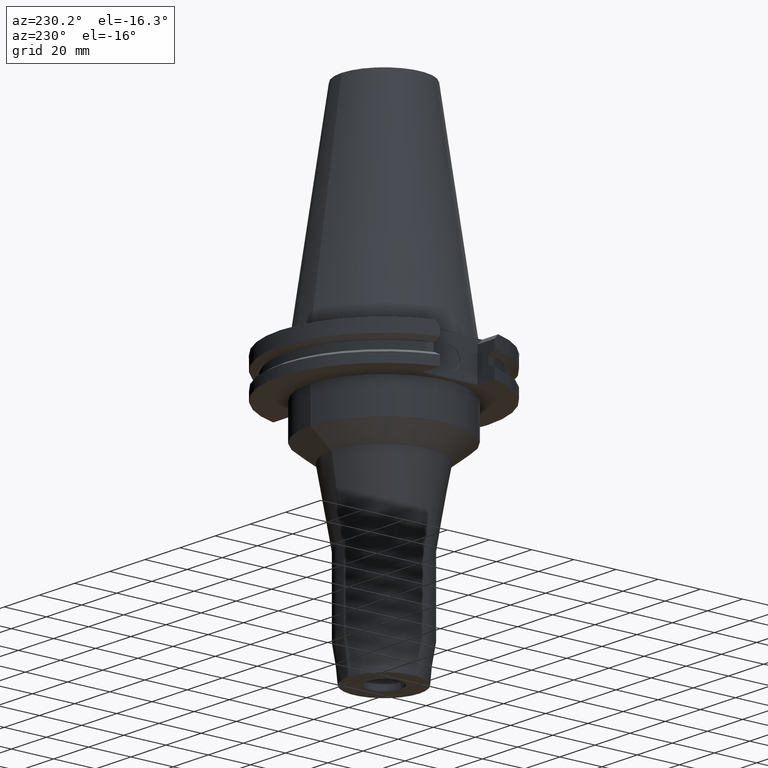
[diagram: clean part render]
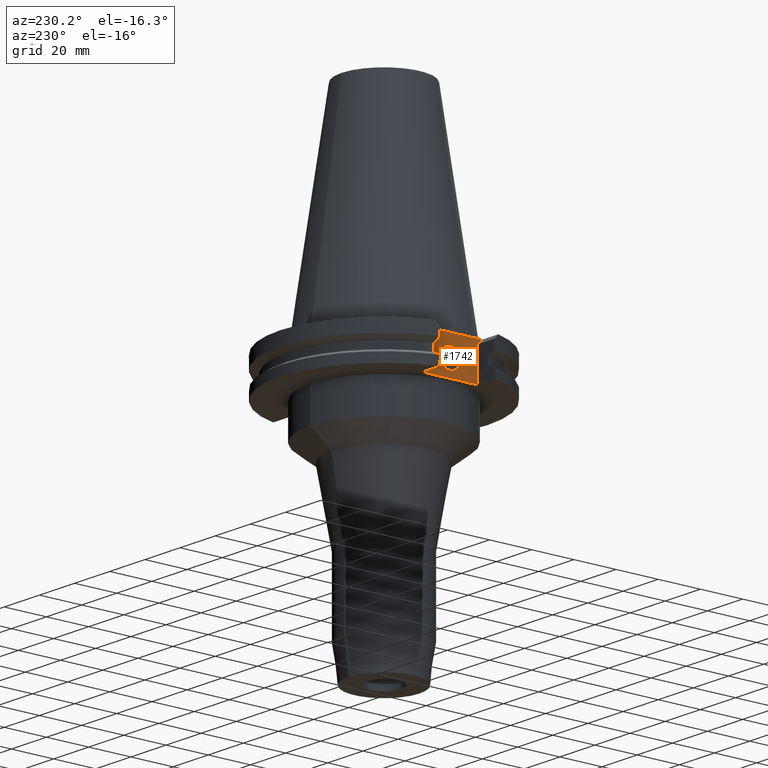
[diagram: same view with one face highlighted and labeled with its STEP entity id]
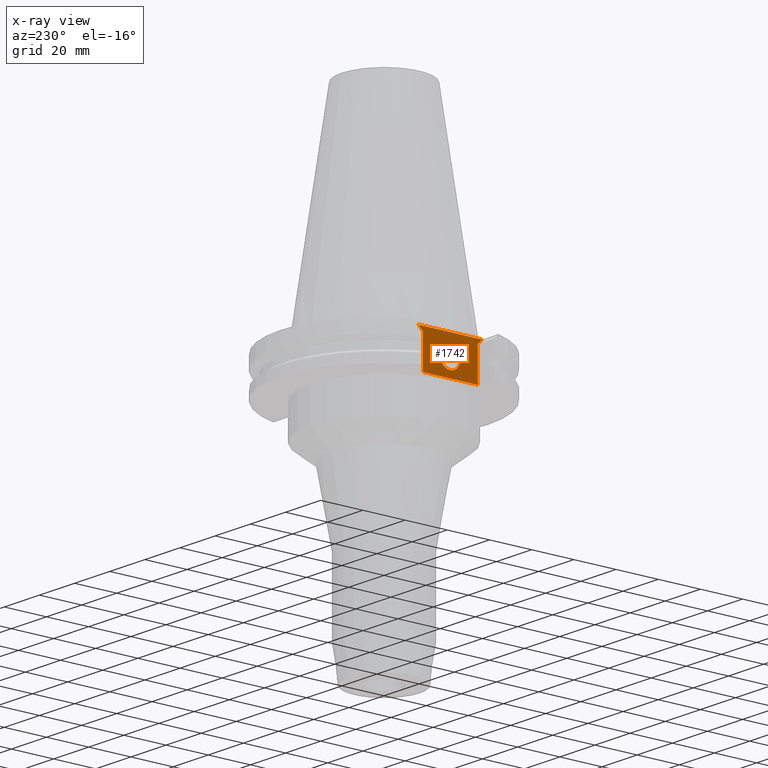
[diagram: x-ray of the same camera — body ghosted, the highlighted face saturated]
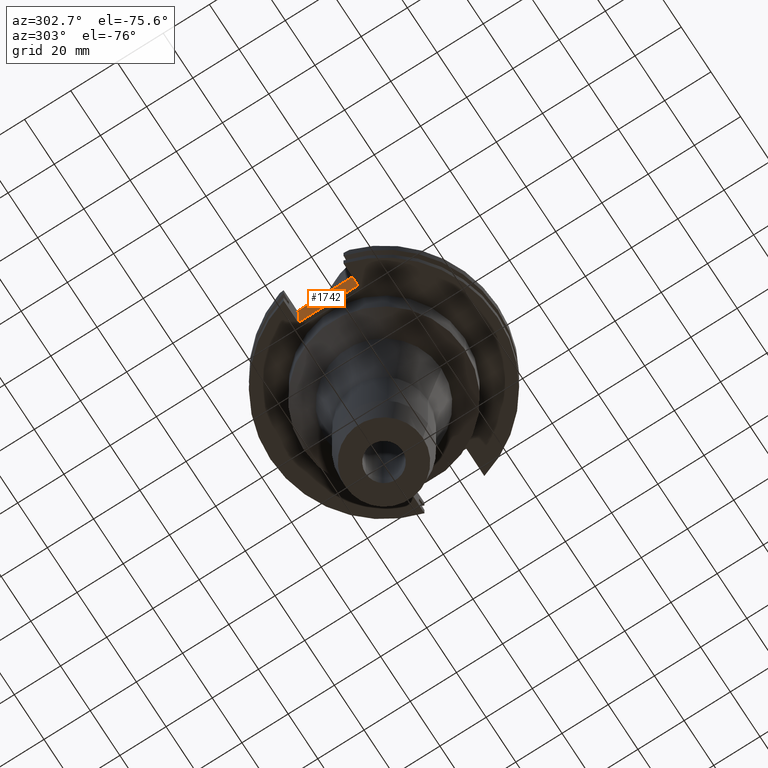
[diagram: same view with one face highlighted and labeled with its STEP entity id]
A machine part, auxiliary view. The second image highlights one B-rep face of the part: STEP entity #1742.
The next image is the same camera in x-ray: the body ghosted, the highlighted face saturated — about 0% of this face is hidden behind the body in this view.
A second angle (auxiliary view) of the same face is appended — the face is thin or edge-on in the first view.
In plain terms, the highlighted planar face has unit normal (1, 0, 0).
Its self-contained STEP definition (entity closure, byte-faithful):
#92=DIRECTION('',(0.E0,1.E0,0.E0));
#93=VECTOR('',#92,3.031E1);
#94=CARTESIAN_POINT('',(-3.768E1,-1.5155E1,-1.5E0));
#95=LINE('',#94,#93);
#286=DIRECTION('',(0.E0,1.E0,0.E0));
#287=VECTOR('',#286,2.591E1);
#288=CARTESIAN_POINT('',(-3.768E1,-1.2955E1,-1.905E1));
#289=LINE('',#288,#287);
#293=DIRECTION('',(0.E0,7.071067811865E-1,7.071067811865E-1));
#294=VECTOR('',#293,3.111269837221E0);
#295=CARTESIAN_POINT('',(-3.768E1,1.2955E1,-3.7E0));
#296=LINE('',#295,#294);
#300=DIRECTION('',(0.E0,7.071067811865E-1,-7.071067811865E-1));
#301=VECTOR('',#300,3.111269837221E0);
#302=CARTESIAN_POINT('',(-3.768E1,-1.5155E1,-1.5E0));
#303=LINE('',#302,#301);
#307=CARTESIAN_POINT('',(-3.768E1,0.E0,-1.118E1));
#308=DIRECTION('',(-1.E0,0.E0,0.E0));
#309=DIRECTION('',(0.E0,0.E0,1.E0));
#310=AXIS2_PLACEMENT_3D('',#307,#308,#309);
#315=CARTESIAN_POINT('',(-3.768E1,0.E0,-1.118E1));
#316=DIRECTION('',(-1.E0,0.E0,0.E0));
#317=DIRECTION('',(0.E0,0.E0,-1.E0));
#318=AXIS2_PLACEMENT_3D('',#315,#316,#317);
#344=DIRECTION('',(0.E0,0.E0,-1.E0));
#345=VECTOR('',#344,1.535E1);
#346=CARTESIAN_POINT('',(-3.768E1,1.2955E1,-3.7E0));
#347=LINE('',#346,#345);
#608=DIRECTION('',(0.E0,0.E0,1.E0));
#609=VECTOR('',#608,1.535E1);
#610=CARTESIAN_POINT('',(-3.768E1,-1.2955E1,-1.905E1));
#611=LINE('',#610,#609);
#1310=CARTESIAN_POINT('',(-3.768E1,-1.5155E1,-1.5E0));
#1311=VERTEX_POINT('',#1310);
#1312=CARTESIAN_POINT('',(-3.768E1,1.5155E1,-1.5E0));
#1313=VERTEX_POINT('',#1312);
#1334=CARTESIAN_POINT('',(-3.768E1,1.2955E1,-1.905E1));
#1335=VERTEX_POINT('',#1334);
#1336=CARTESIAN_POINT('',(-3.768E1,-1.2955E1,-1.905E1));
#1337=VERTEX_POINT('',#1336);
#1463=CARTESIAN_POINT('',(-3.768E1,-1.2955E1,-3.7E0));
#1464=VERTEX_POINT('',#1463);
#1472=CARTESIAN_POINT('',(-3.768E1,1.2955E1,-3.7E0));
#1473=VERTEX_POINT('',#1472);
#1474=CARTESIAN_POINT('',(-3.768E1,0.E0,-6.4175E0));
#1475=CARTESIAN_POINT('',(-3.768E1,0.E0,-1.59425E1));
#1476=VERTEX_POINT('',#1474);
#1477=VERTEX_POINT('',#1475);
#1720=CARTESIAN_POINT('',(-3.768E1,0.E0,0.E0));
#1721=DIRECTION('',(1.E0,0.E0,0.E0));
#1722=DIRECTION('',(0.E0,-1.E0,0.E0));
#1723=AXIS2_PLACEMENT_3D('',#1720,#1721,#1722);
#1724=PLANE('',#1723);
#1725=ORIENTED_EDGE('',*,*,#1628,.T.);
#1727=ORIENTED_EDGE('',*,*,#1726,.F.);
#1728=ORIENTED_EDGE('',*,*,#1713,.T.);
#1729=ORIENTED_EDGE('',*,*,#1578,.F.);
#1731=ORIENTED_EDGE('',*,*,#1730,.T.);
#1733=ORIENTED_EDGE('',*,*,#1732,.F.);
#1734=EDGE_LOOP('',(#1725,#1727,#1728,#1729,#1731,#1733));
#1735=FACE_OUTER_BOUND('',#1734,.F.);
#1737=ORIENTED_EDGE('',*,*,#1736,.T.);
#1739=ORIENTED_EDGE('',*,*,#1738,.T.);
#1740=EDGE_LOOP('',(#1737,#1739));
#1741=FACE_BOUND('',#1740,.F.);
#311=CIRCLE('',#310,4.7625E0);
#319=CIRCLE('',#318,4.7625E0);
#1578=EDGE_CURVE('',#1311,#1313,#95,.T.);
#1628=EDGE_CURVE('',#1337,#1335,#289,.T.);
#1713=EDGE_CURVE('',#1473,#1313,#296,.T.);
#1726=EDGE_CURVE('',#1473,#1335,#347,.T.);
#1730=EDGE_CURVE('',#1311,#1464,#303,.T.);
#1732=EDGE_CURVE('',#1337,#1464,#611,.T.);
#1736=EDGE_CURVE('',#1476,#1477,#311,.T.);
#1738=EDGE_CURVE('',#1477,#1476,#319,.T.);
#1742=ADVANCED_FACE('',(#1735,#1741),#1724,.F.);